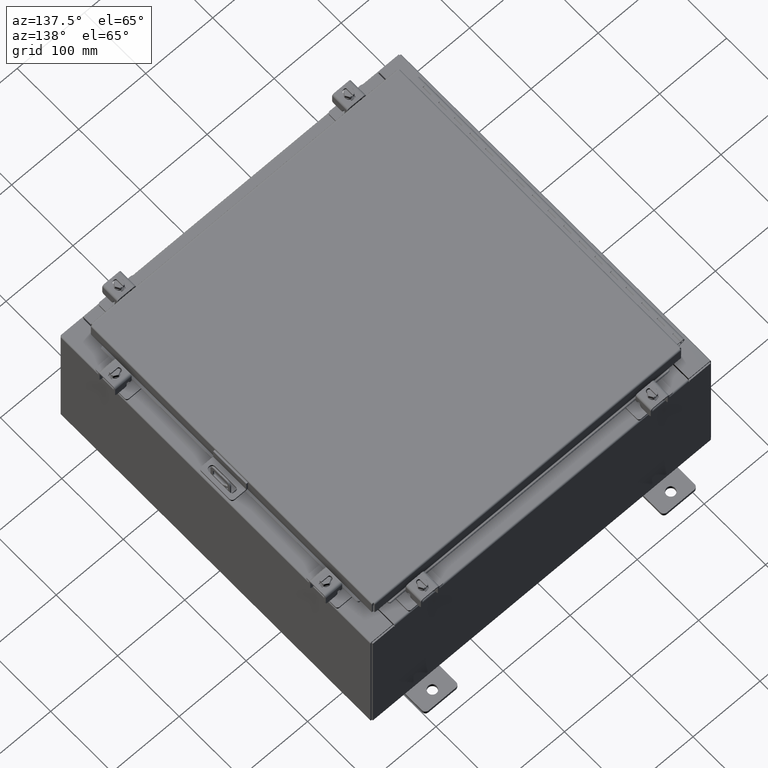
[diagram: clean part render]
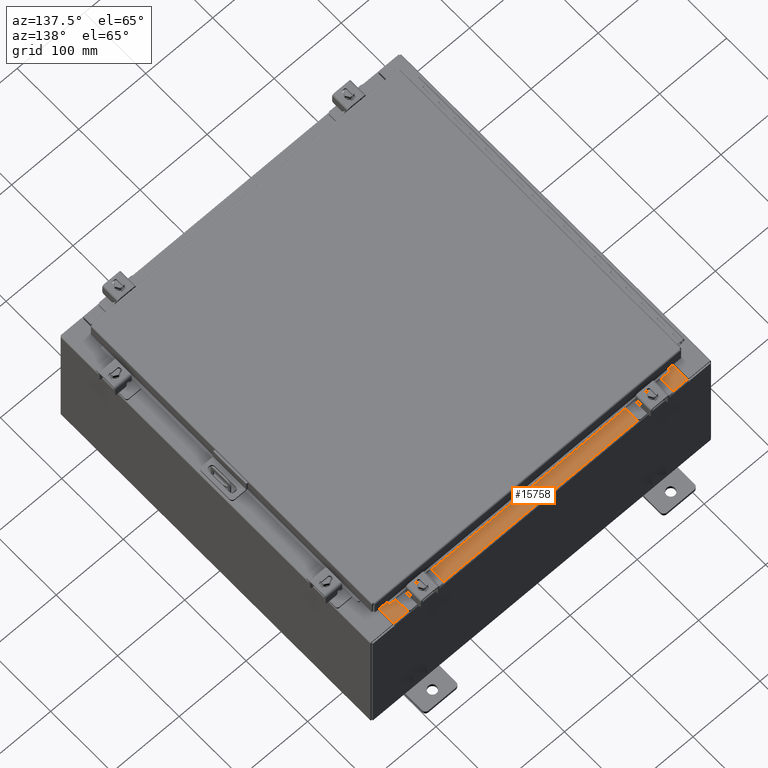
[diagram: same view with one face highlighted and labeled with its STEP entity id]
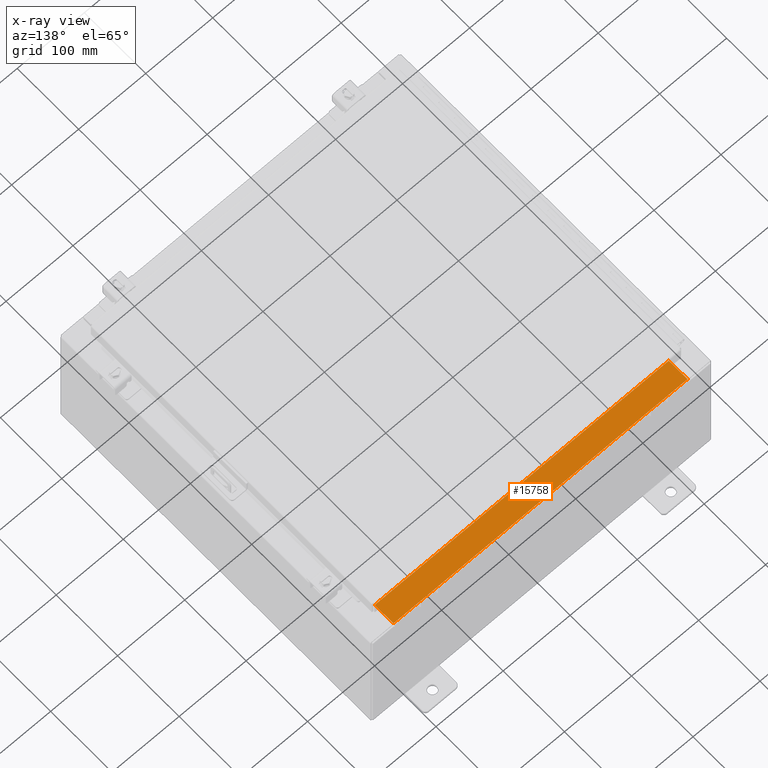
[diagram: x-ray of the same camera — body ghosted, the highlighted face saturated]
A machine part, auxiliary view. The second image highlights one B-rep face of the part: STEP entity #15758.
The next image is the same camera in x-ray: the body ghosted, the highlighted face saturated — about 0% of this face is hidden behind the body in this view.
In plain terms, the highlighted planar face has unit normal (0, 0, 1).
Its self-contained STEP definition (entity closure, byte-faithful):
#1423 = CARTESIAN_POINT ( 'NONE',  ( 8.637200000000000000, -1.300299999999999800, 4.000000000000004400 ) ) ;
#3030 = VECTOR ( 'NONE', #25353, 39.37007874015748100 ) ;
#3714 = DIRECTION ( 'NONE',  ( -0.0000000000000000000, -1.000000000000000000, 3.566381192773190000E-015 ) ) ;
#5655 = VECTOR ( 'NONE', #18749, 39.37007874015748100 ) ;
#5737 = FACE_OUTER_BOUND ( 'NONE', #22499, .T. ) ;
#6900 = EDGE_CURVE ( 'NONE', #17108, #24897, #21195, .T. ) ;
#7056 = CARTESIAN_POINT ( 'NONE',  ( -8.637200000000000000, -0.08770000000000000000, 4.000000000000000000 ) ) ;
#7087 = ORIENTED_EDGE ( 'NONE', *, *, #17031, .T. ) ;
#7334 = CARTESIAN_POINT ( 'NONE',  ( 8.637200000000000000, -1.287299999999999900, 4.000000000000004400 ) ) ;
#8883 = VECTOR ( 'NONE', #12779, 39.37007874015748100 ) ;
#10488 = CARTESIAN_POINT ( 'NONE',  ( 8.637200000000000000, -1.287299999999999900, 4.000000000000003600 ) ) ;
#11698 = LINE ( 'NONE', #27744, #5655 ) ;
#11838 = VECTOR ( 'NONE', #3714, 39.37007874015748100 ) ;
#12549 = LINE ( 'NONE', #1423, #11838 ) ;
#12713 = ORIENTED_EDGE ( 'NONE', *, *, #6900, .F. ) ;
#12779 = DIRECTION ( 'NONE',  ( -1.000000000000000000, 0.0000000000000000000, 0.0000000000000000000 ) ) ;
#13037 = DIRECTION ( 'NONE',  ( 0.0000000000000000000, -1.000000000000000000, 3.566381192773190000E-015 ) ) ;
#15667 = ORIENTED_EDGE ( 'NONE', *, *, #20780, .F. ) ;
#15758 = ADVANCED_FACE ( 'NONE', ( #5737 ), #24370, .T. ) ;
#16644 = EDGE_CURVE ( 'NONE', #22663, #17108, #26985, .T. ) ;
#17031 = EDGE_CURVE ( 'NONE', #20602, #24897, #11698, .T. ) ;
#17108 = VERTEX_POINT ( 'NONE', #21221 ) ;
#17519 = CARTESIAN_POINT ( 'NONE',  ( 0.0000000000000000000, 1.425992975200418500E-014, 4.000000000000000000 ) ) ;
#18749 = DIRECTION ( 'NONE',  ( -1.000000000000000000, 3.162886113166609200E-017, -1.128005754888089100E-031 ) ) ;
#18968 = CARTESIAN_POINT ( 'NONE',  ( 8.637200000000000000, -0.08769999999999965300, 4.000000000000000000 ) ) ;
#19313 = ORIENTED_EDGE ( 'NONE', *, *, #16644, .F. ) ;
#20602 = VERTEX_POINT ( 'NONE', #18968 ) ;
#20780 = EDGE_CURVE ( 'NONE', #20602, #22663, #12549, .T. ) ;
#21195 = LINE ( 'NONE', #27596, #3030 ) ;
#21221 = CARTESIAN_POINT ( 'NONE',  ( -8.637200000000000000, -1.287299999999999200, 4.000000000000004400 ) ) ;
#22499 = EDGE_LOOP ( 'NONE', ( #12713, #19313, #15667, #7087 ) ) ;
#22663 = VERTEX_POINT ( 'NONE', #7334 ) ;
#24370 = PLANE ( 'NONE',  #25868 ) ;
#24897 = VERTEX_POINT ( 'NONE', #7056 ) ;
#25353 = DIRECTION ( 'NONE',  ( -0.0000000000000000000, 1.000000000000000000, -3.566381192773190000E-015 ) ) ;
#25868 = AXIS2_PLACEMENT_3D ( 'NONE', #17519, #26640, #13037 ) ;
#26640 = DIRECTION ( 'NONE',  ( 0.0000000000000000000, 3.566381192773190000E-015, 1.000000000000000000 ) ) ;
#26985 = LINE ( 'NONE', #10488, #8883 ) ;
#27596 = CARTESIAN_POINT ( 'NONE',  ( -8.637200000000000000, -0.07469999999999973900, 4.000000000000000000 ) ) ;
#27744 = CARTESIAN_POINT ( 'NONE',  ( -2.773851121247567100E-018, -0.08770000000000000000, 4.000000000000000900 ) ) ;